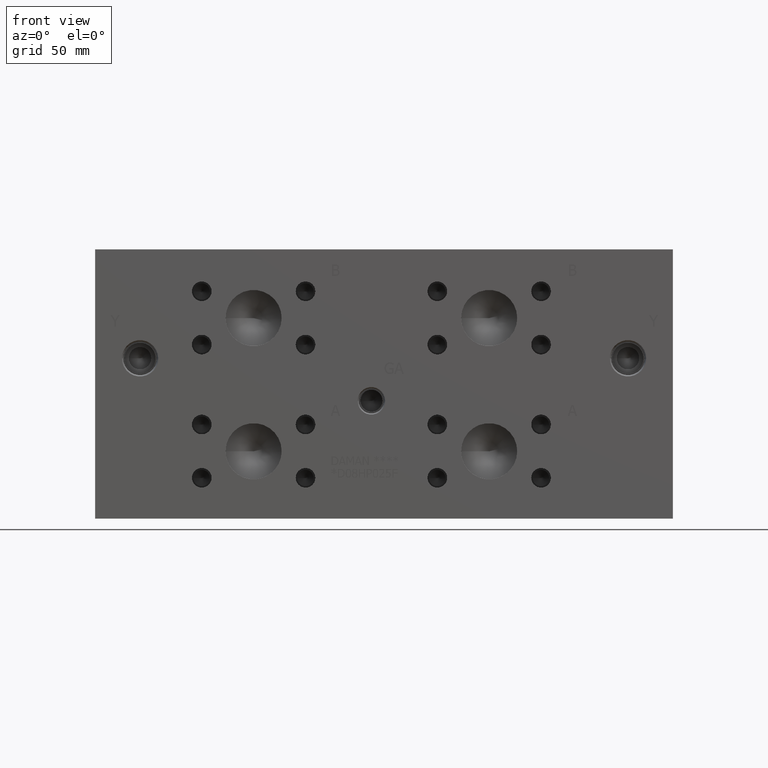
[diagram: clean part render]
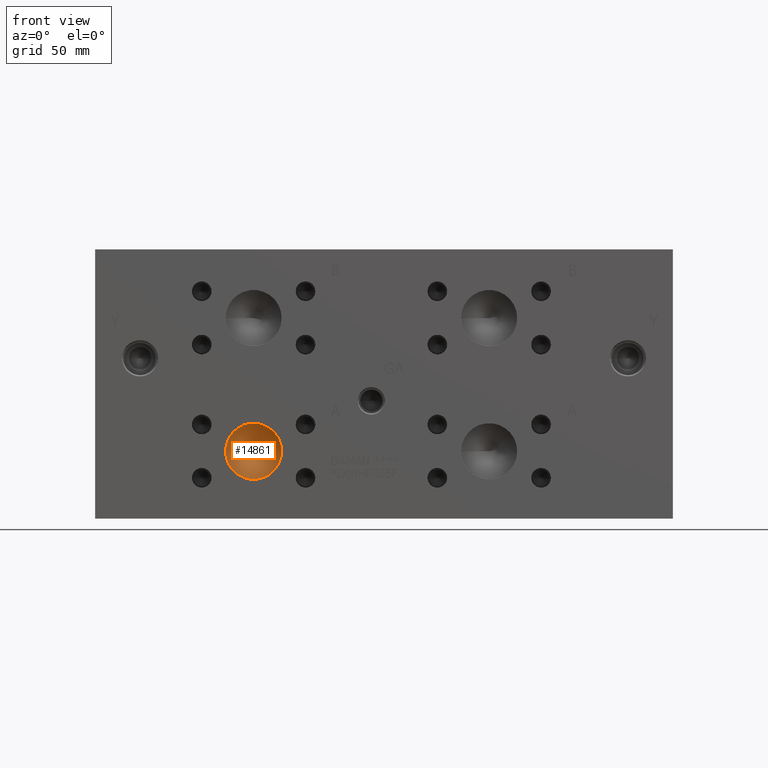
[diagram: same view with one face highlighted and labeled with its STEP entity id]
A machine part, front view. The second image highlights one B-rep face of the part: STEP entity #14861.
In plain terms, the highlighted conical surface has half-angle 60 deg.
Its self-contained STEP definition (entity closure, byte-faithful):
#199=CONICAL_SURFACE('',#15834,7.9375,1.0471975511966);
#562=CIRCLE('',#15835,15.875);
#563=CIRCLE('',#15836,15.875);
#1984=FACE_OUTER_BOUND('',#2897,.T.);
#2897=EDGE_LOOP('',(#13065,#13066,#13067,#13068));
#4235=LINE('',#25407,#5517);
#5517=VECTOR('',#19024,7.9375);
#7177=VERTEX_POINT('',#25403);
#7178=VERTEX_POINT('',#25404);
#7179=VERTEX_POINT('',#25406);
#9196=EDGE_CURVE('',#7177,#7178,#562,.T.);
#9197=EDGE_CURVE('',#7178,#7179,#4235,.T.);
#9198=EDGE_CURVE('',#7178,#7177,#563,.T.);
#13065=ORIENTED_EDGE('',*,*,#9196,.T.);
#13066=ORIENTED_EDGE('',*,*,#9197,.T.);
#13067=ORIENTED_EDGE('',*,*,#9197,.F.);
#13068=ORIENTED_EDGE('',*,*,#9198,.T.);
#14861=ADVANCED_FACE('',(#1984),#199,.F.);
#15834=AXIS2_PLACEMENT_3D('',#25402,#19020,#19021);
#15835=AXIS2_PLACEMENT_3D('',#25405,#19022,#19023);
#15836=AXIS2_PLACEMENT_3D('',#25408,#19025,#19026);
#19020=DIRECTION('center_axis',(0.,-1.,0.));
#19021=DIRECTION('ref_axis',(1.,0.,0.));
#19022=DIRECTION('center_axis',(0.,-1.,0.));
#19023=DIRECTION('ref_axis',(1.,0.,0.));
#19024=DIRECTION('',(0.866025403784439,0.5,1.06057523872491E-16));
#19025=DIRECTION('center_axis',(0.,-1.,0.));
#19026=DIRECTION('ref_axis',(1.,0.,0.));
#25402=CARTESIAN_POINT('Origin',(89.6874,13.7481577616927,38.1));
#25403=CARTESIAN_POINT('',(105.5624,9.16544,38.1));
#25404=CARTESIAN_POINT('',(73.8124,9.16544,38.1));
#25405=CARTESIAN_POINT('Origin',(89.6874,9.16544,38.1));
#25406=CARTESIAN_POINT('',(89.6874,18.3308755233853,38.1));
#25407=CARTESIAN_POINT('',(81.7499,13.7481577616927,38.1));
#25408=CARTESIAN_POINT('Origin',(89.6874,9.16544,38.1));